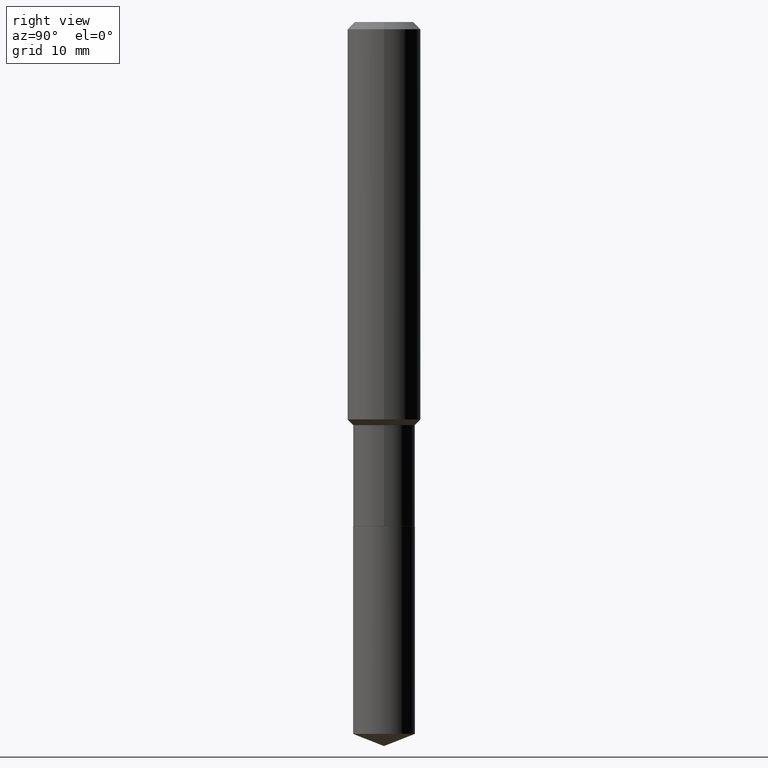
[diagram: clean part render]
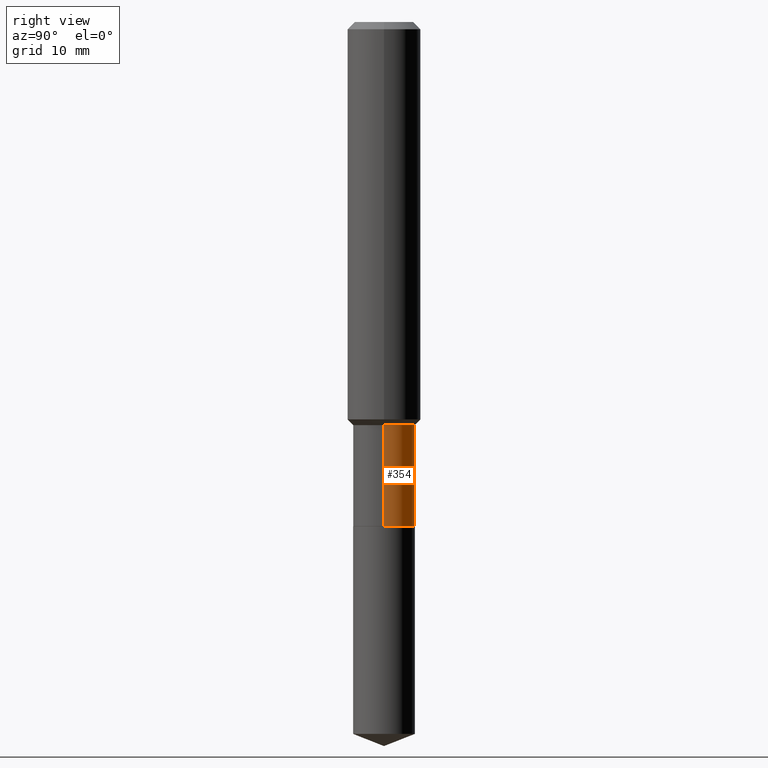
[diagram: same view with one face highlighted and labeled with its STEP entity id]
A machine part, right view. The second image highlights one B-rep face of the part: STEP entity #354.
In plain terms, the highlighted cylindrical surface (edge-blend (fillet) strip) has radius 3.3744 mm, axis along (-0, 0, 1).
Its self-contained STEP definition (entity closure, byte-faithful):
#6 = DIRECTION ( 'NONE',  ( 1.000000000000000000, -6.982962677686266711E-15, 0.000000000000000000 ) ) ;
#11 = EDGE_CURVE ( 'NONE', #195, #238, #371, .T. ) ;
#26 = DIRECTION ( 'NONE',  ( 1.000000000000000000, -6.982962677686269866E-15, 0.000000000000000000 ) ) ;
#40 = CARTESIAN_POINT ( 'NONE',  ( -0.1328499999999999404, -5.858322493943866365E-15, -1.731700000000000017 ) ) ;
#46 = EDGE_LOOP ( 'NONE', ( #49, #428, #283, #468 ) ) ;
#49 = ORIENTED_EDGE ( 'NONE', *, *, #280, .T. ) ;
#50 = CYLINDRICAL_SURFACE ( 'NONE', #217, 0.1328499999999999681 ) ;
#52 = CARTESIAN_POINT ( 'NONE',  ( 0.000000000000000000, 0.000000000000000000, 0.000000000000000000 ) ) ;
#80 = CARTESIAN_POINT ( 'NONE',  ( 0.1328499999999999959, -8.486045394058262536E-15, -2.164800000000000058 ) ) ;
#88 = CIRCLE ( 'NONE', #477, 0.1328499999999999404 ) ;
#90 = EDGE_CURVE ( 'NONE', #237, #238, #88, .T. ) ;
#110 = CARTESIAN_POINT ( 'NONE',  ( -0.1328499999999999959, -5.858322493943866365E-15, -2.164800000000000058 ) ) ;
#133 = CARTESIAN_POINT ( 'NONE',  ( -0.1328499999999999681, 9.439560244572928704E-16, -6.534805267403641141E-30 ) ) ;
#146 = VECTOR ( 'NONE', #415, 39.37007874015748143 ) ;
#152 = LINE ( 'NONE', #260, #146 ) ;
#195 = VERTEX_POINT ( 'NONE', #110 ) ;
#217 = AXIS2_PLACEMENT_3D ( 'NONE', #52, #306, #396 ) ;
#219 = DIRECTION ( 'NONE',  ( -2.445468806185136877E-29, 3.491481338843145188E-15, 1.000000000000000000 ) ) ;
#225 = AXIS2_PLACEMENT_3D ( 'NONE', #432, #465, #6 ) ;
#237 = VERTEX_POINT ( 'NONE', #448 ) ;
#238 = VERTEX_POINT ( 'NONE', #40 ) ;
#260 = CARTESIAN_POINT ( 'NONE',  ( 0.1328499999999999681, -9.276865917306203258E-16, 6.478000846644898476E-30 ) ) ;
#261 = EDGE_CURVE ( 'NONE', #272, #237, #152, .T. ) ;
#272 = VERTEX_POINT ( 'NONE', #80 ) ;
#280 = EDGE_CURVE ( 'NONE', #272, #195, #412, .T. ) ;
#283 = ORIENTED_EDGE ( 'NONE', *, *, #90, .F. ) ;
#289 = CARTESIAN_POINT ( 'NONE',  ( 4.234818331670801367E-29, -6.046198234474675274E-15, -1.731700000000000017 ) ) ;
#306 = DIRECTION ( 'NONE',  ( -2.445468806185136597E-29, 3.491481338843145583E-15, 1.000000000000000000 ) ) ;
#311 = FACE_OUTER_BOUND ( 'NONE', #46, .T. ) ;
#354 = ADVANCED_FACE ( 'NONE', ( #311 ), #50, .T. ) ;
#359 = VECTOR ( 'NONE', #219, 39.37007874015748143 ) ;
#366 = DIRECTION ( 'NONE',  ( -2.445468806185136597E-29, 3.491481338843145583E-15, 1.000000000000000000 ) ) ;
#371 = LINE ( 'NONE', #133, #359 ) ;
#396 = DIRECTION ( 'NONE',  ( 1.000000000000000000, -6.982962677686266711E-15, 4.876176775795935232E-29 ) ) ;
#412 = CIRCLE ( 'NONE', #225, 0.1328499999999999959 ) ;
#415 = DIRECTION ( 'NONE',  ( -2.445468806185136877E-29, 3.491481338843145188E-15, 1.000000000000000000 ) ) ;
#428 = ORIENTED_EDGE ( 'NONE', *, *, #11, .T. ) ;
#432 = CARTESIAN_POINT ( 'NONE',  ( 5.293950871629583880E-29, -7.558358802327641618E-15, -2.164800000000000058 ) ) ;
#448 = CARTESIAN_POINT ( 'NONE',  ( 0.1328499999999999404, -6.973884826205296191E-15, -1.731700000000000017 ) ) ;
#465 = DIRECTION ( 'NONE',  ( -2.445468806185136597E-29, 3.491481338843145583E-15, 1.000000000000000000 ) ) ;
#468 = ORIENTED_EDGE ( 'NONE', *, *, #261, .F. ) ;
#477 = AXIS2_PLACEMENT_3D ( 'NONE', #289, #366, #26 ) ;